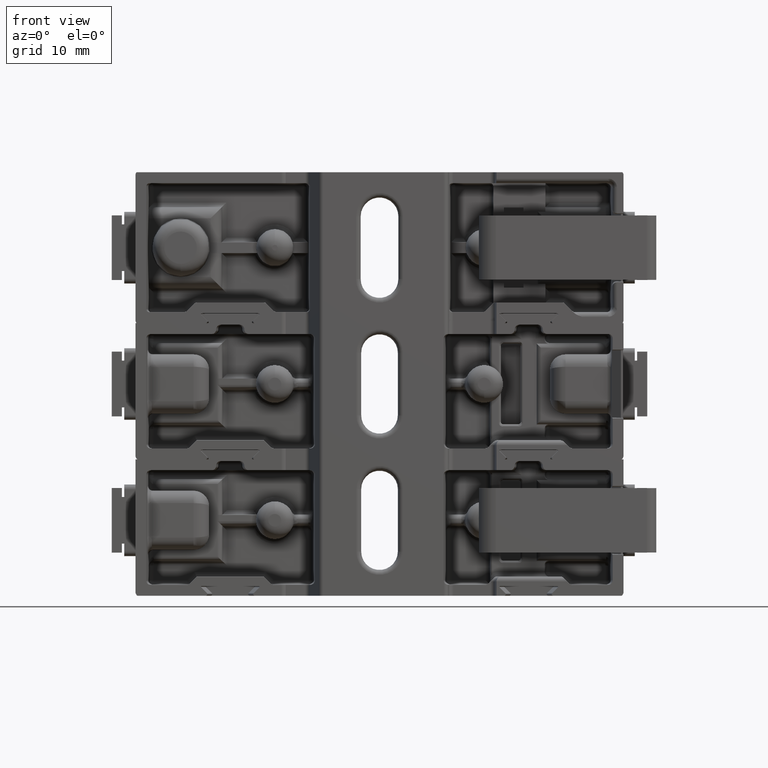
[diagram: clean part render]
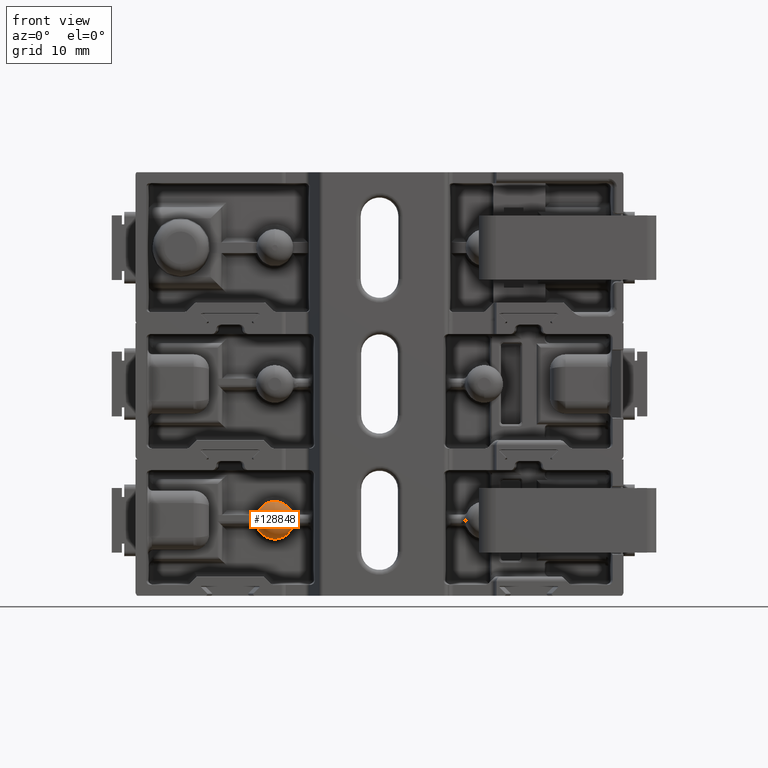
[diagram: same view with one face highlighted and labeled with its STEP entity id]
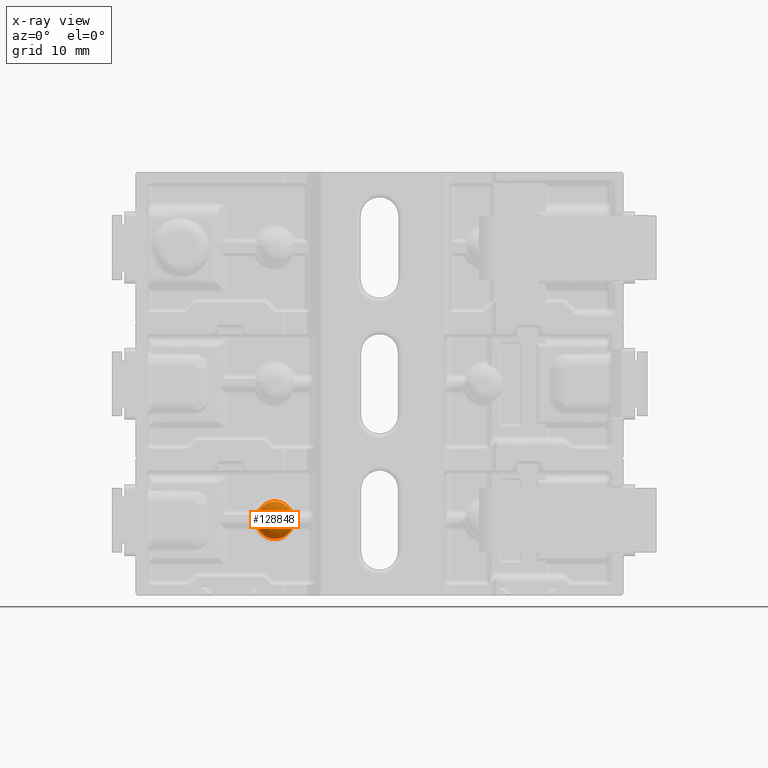
[diagram: x-ray of the same camera — body ghosted, the highlighted face saturated]
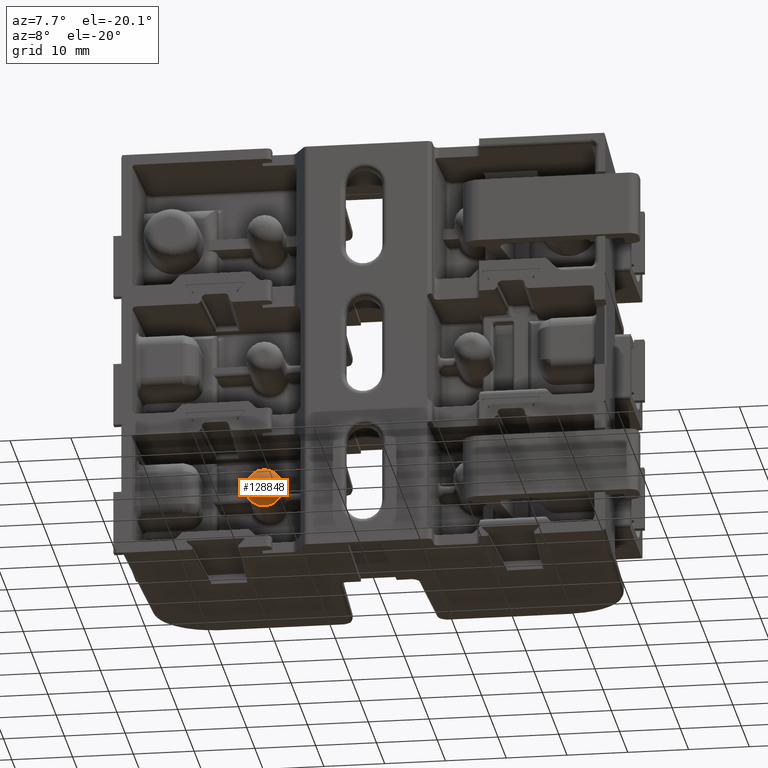
[diagram: same view with one face highlighted and labeled with its STEP entity id]
A machine part, front view. The second image highlights one B-rep face of the part: STEP entity #128848.
The next image is the same camera in x-ray: the body ghosted, the highlighted face saturated — about 0% of this face is hidden behind the body in this view.
A second angle (auxiliary view) of the same face is appended — the face is thin or edge-on in the first view.
In plain terms, the highlighted toroidal blend (fillet) surface has major radius 1.0287 mm and minor (blend) radius 2.032 mm.
Its self-contained STEP definition (entity closure, byte-faithful):
#1522 = DIRECTION ( 'NONE',  ( -0.0000000000000000000, -1.000000000000000000, -0.0000000000000000000 ) ) ;
#2598 = AXIS2_PLACEMENT_3D ( 'NONE', #129666, #61809, #141031 ) ;
#4214 = FACE_OUTER_BOUND ( 'NONE', #24515, .T. ) ;
#16484 = VERTEX_POINT ( 'NONE', #104931 ) ;
#17066 = CIRCLE ( 'NONE', #2598, 0.1204999999999999800 ) ;
#22429 = ORIENTED_EDGE ( 'NONE', *, *, #127590, .F. ) ;
#24515 = EDGE_LOOP ( 'NONE', ( #22429 ) ) ;
#37086 = CARTESIAN_POINT ( 'NONE',  ( -0.6720000000000002600, 0.2349999999999999900, -1.629499999999999700 ) ) ;
#47112 = DIRECTION ( 'NONE',  ( 0.0000000000000000000, 0.0000000000000000000, 1.000000000000000000 ) ) ;
#61128 = EDGE_LOOP ( 'NONE', ( #77153 ) ) ;
#61809 = DIRECTION ( 'NONE',  ( 0.0000000000000000000, 1.000000000000000000, 0.0000000000000000000 ) ) ;
#65419 = AXIS2_PLACEMENT_3D ( 'NONE', #114528, #115025, #47112 ) ;
#69183 = CARTESIAN_POINT ( 'NONE',  ( -0.6720000000000002600, 0.1550000000000000000, -1.749999999999999600 ) ) ;
#77153 = ORIENTED_EDGE ( 'NONE', *, *, #127151, .F. ) ;
#80579 = DIRECTION ( 'NONE',  ( 0.0000000000000000000, 0.0000000000000000000, 1.000000000000000000 ) ) ;
#82092 = AXIS2_PLACEMENT_3D ( 'NONE', #69183, #1522, #80579 ) ;
#90896 = FACE_OUTER_BOUND ( 'NONE', #61128, .T. ) ;
#104931 = CARTESIAN_POINT ( 'NONE',  ( -0.6720000000000002600, 0.1550000000000000000, -1.709499999999999600 ) ) ;
#114528 = CARTESIAN_POINT ( 'NONE',  ( -0.6720000000000002600, 0.2349999999999999900, -1.749999999999999600 ) ) ;
#115025 = DIRECTION ( 'NONE',  ( 0.0000000000000000000, 1.000000000000000000, 0.0000000000000000000 ) ) ;
#127151 = EDGE_CURVE ( 'NONE', #16484, #16484, #129602, .T. ) ;
#127590 = EDGE_CURVE ( 'NONE', #133299, #133299, #17066, .T. ) ;
#128848 = ADVANCED_FACE ( 'NONE', ( #90896, #4214 ), #136895, .T. ) ;
#129602 = CIRCLE ( 'NONE', #82092, 0.04050000000000002200 ) ;
#129666 = CARTESIAN_POINT ( 'NONE',  ( -0.6720000000000002600, 0.2349999999999999900, -1.749999999999999600 ) ) ;
#133299 = VERTEX_POINT ( 'NONE', #37086 ) ;
#136895 = TOROIDAL_SURFACE ( 'NONE', #65419, 0.04050000000000011900, 0.08000000000000000200 ) ;
#141031 = DIRECTION ( 'NONE',  ( 0.0000000000000000000, 0.0000000000000000000, 1.000000000000000000 ) ) ;